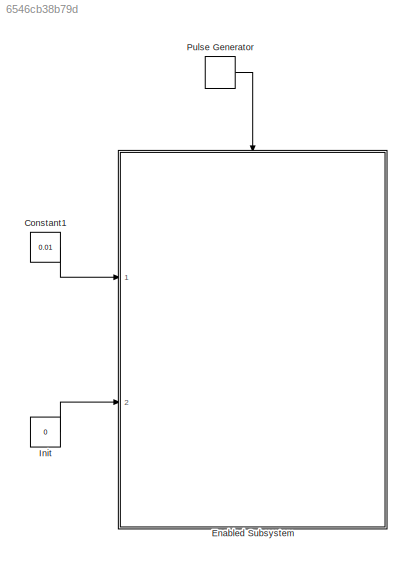
MODEL slx_6546cb38b79d
KIND model
CONFIG AbsTol = auto
CONFIG EnableMultiTasking = off
CONFIG FixedStep = auto
CONFIG InitFcn = cd '<path> v1.01.01_WindCrete'
CONFIG MaxStep = auto
CONFIG MinStep = auto
CONFIG RelTol = 1e-3
CONFIG SampleTimeConstraint = Unconstrained
CONFIG Solver = ode45
CONFIG SolverName = ode45
CONFIG StartFcn = loadlibrary('MoorDyn','MoorDyn')
CONFIG StartTime = 0.0
CONFIG StopFcn = calllib('MoorDyn','LinesClose'); % close MoorDyn \nunloadlibrary MoorDyn; % unload library (never forget to do this!)
CONFIG StopTime = 5400
BLOCK [Constant] Constant1
  Value = 0.01
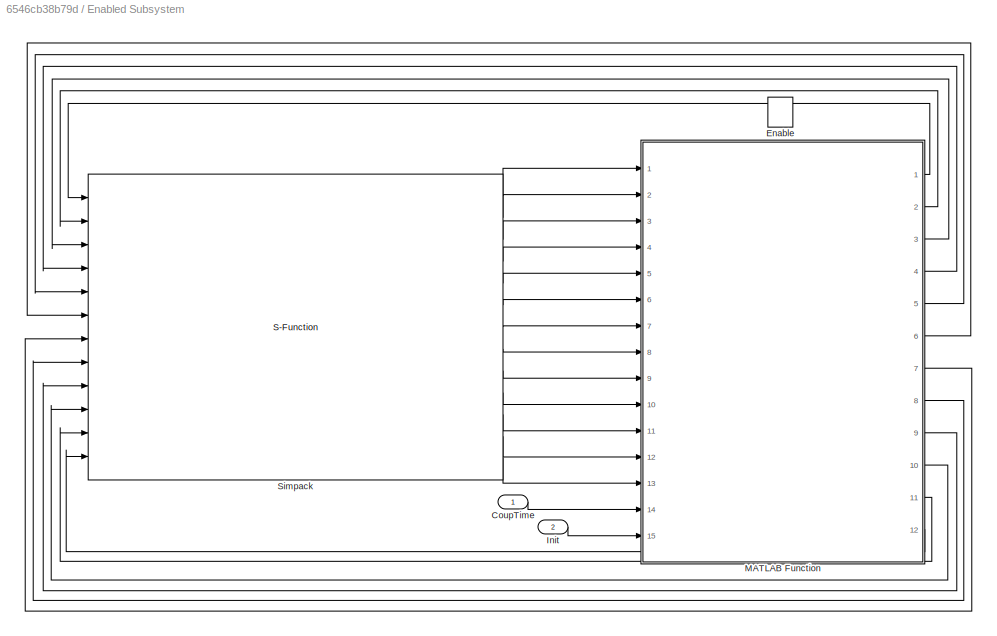
BLOCK [SubSystem] Enabled Subsystem
  Ports = [2, 0, 1]
  RequestExecContextInheritance = off
  TreatAsAtomicUnit = on
BLOCK [Inport] Enabled Subsystem/CoupTime
  IconDisplay = Port number
BLOCK [EnablePort] Enabled Subsystem/Enable
  Ports = []
BLOCK [Inport] Enabled Subsystem/Init 
  IconDisplay = Port number
  Port = 2
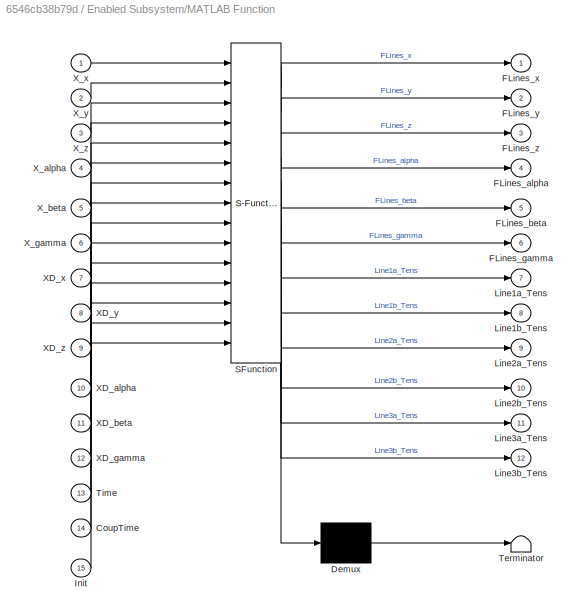
BLOCK [SubSystem] Enabled Subsystem/MATLAB Function
  ErrorFcn = Stateflow.Translate.translate
  PermitHierarchicalResolution = ExplicitOnly
  Ports = [15, 12]
  RequestExecContextInheritance = off
  SFBlockType = MATLAB Function
  TreatAsAtomicUnit = on
BLOCK [Demux] Enabled Subsystem/MATLAB Function/ Demux 
  Outputs = 1
  Ports = [1, 1]
BLOCK [S-Function] Enabled Subsystem/MATLAB Function/ SFunction 
  EnableBusSupport = on
  FunctionName = sf_sfun
  PortCounts = [15 13]
  Ports = [15, 13]
  SFcnIsStateOwnerBlock = off
  SFunctionDeploymentMode = off
  Tag = Stateflow S-Function MoordynSimulinkCoupling_WindCrete 1
BLOCK [Terminator] Enabled Subsystem/MATLAB Function/ Terminator 
BLOCK [Inport] Enabled Subsystem/MATLAB Function/CoupTime
  IconDisplay = Port number
  Port = 14
BLOCK [Outport] Enabled Subsystem/MATLAB Function/FLines_alpha
  IconDisplay = Port number
  Port = 4
BLOCK [Outport] Enabled Subsystem/MATLAB Function/FLines_beta
  IconDisplay = Port number
  Port = 5
BLOCK [Outport] Enabled Subsystem/MATLAB Function/FLines_gamma
  IconDisplay = Port number
  Port = 6
BLOCK [Outport] Enabled Subsystem/MATLAB Function/FLines_x
  IconDisplay = Port number
BLOCK [Outport] Enabled Subsystem/MATLAB Function/FLines_y
  IconDisplay = Port number
  Port = 2
BLOCK [Outport] Enabled Subsystem/MATLAB Function/FLines_z
  IconDisplay = Port number
  Port = 3
BLOCK [Inport] Enabled Subsystem/MATLAB Function/Init
  IconDisplay = Port number
  Port = 15
BLOCK [Outport] Enabled Subsystem/MATLAB Function/Line1a_Tens
  IconDisplay = Port number
  Port = 7
BLOCK [Outport] Enabled Subsystem/MATLAB Function/Line1b_Tens
  IconDisplay = Port number
  Port = 8
BLOCK [Outport] Enabled Subsystem/MATLAB Function/Line2a_Tens
  IconDisplay = Port number
  Port = 9
BLOCK [Outport] Enabled Subsystem/MATLAB Function/Line2b_Tens
  IconDisplay = Port number
  Port = 10
BLOCK [Outport] Enabled Subsystem/MATLAB Function/Line3a_Tens
  IconDisplay = Port number
  Port = 11
BLOCK [Outport] Enabled Subsystem/MATLAB Function/Line3b_Tens
  IconDisplay = Port number
  Port = 12
BLOCK [Inport] Enabled Subsystem/MATLAB Function/Time
  IconDisplay = Port number
  Port = 13
BLOCK [Inport] Enabled Subsystem/MATLAB Function/XD_alpha
  IconDisplay = Port number
  Port = 10
BLOCK [Inport] Enabled Subsystem/MATLAB Function/XD_beta
  IconDisplay = Port number
  Port = 11
BLOCK [Inport] Enabled Subsystem/MATLAB Function/XD_gamma
  IconDisplay = Port number
  Port = 12
BLOCK [Inport] Enabled Subsystem/MATLAB Function/XD_x
  IconDisplay = Port number
  Port = 7
BLOCK [Inport] Enabled Subsystem/MATLAB Function/XD_y
  IconDisplay = Port number
  Port = 8
BLOCK [Inport] Enabled Subsystem/MATLAB Function/XD_z
  IconDisplay = Port number
  Port = 9
BLOCK [Inport] Enabled Subsystem/MATLAB Function/X_alpha
  IconDisplay = Port number
  Port = 4
BLOCK [Inport] Enabled Subsystem/MATLAB Function/X_beta
  IconDisplay = Port number
  Port = 5
BLOCK [Inport] Enabled Subsystem/MATLAB Function/X_gamma
  IconDisplay = Port number
  Port = 6
BLOCK [Inport] Enabled Subsystem/MATLAB Function/X_x
  IconDisplay = Port number
BLOCK [Inport] Enabled Subsystem/MATLAB Function/X_y
  IconDisplay = Port number
  Port = 2
BLOCK [Inport] Enabled Subsystem/MATLAB Function/X_z
  IconDisplay = Port number
  Port = 3
BLOCK [S-Function] Enabled Subsystem/Simpack
  DestroyFcn = simat_callbacks('DestroyFcn');
  EnableBusSupport = off
  FunctionName = simat_2019_2
  OpenFcn = simat_callbacks('OpenFcn');
  Parameters = sample_time server_port server_address auto_start simpack_model initSimpackFirst executionType measType extrapolation_degree singleVectorIO writeSubvarFile writeMFile
  Ports = [12, 13]
  SFcnIsStateOwnerBlock = off
  SFunctionDeploymentMode = off
BLOCK [Constant] Init
  Value = 0
BLOCK [DiscretePulseGenerator] Pulse Generator
  Period = 0.01
  Ports = [0, 1]
  PulseType = Time based
  PulseWidth = 70
LINE Constant1:1 -> Enabled Subsystem:1
LINE Enabled Subsystem/CoupTime:1 -> Enabled Subsystem/MATLAB Function:14
LINE Enabled Subsystem/Init :1 -> Enabled Subsystem/MATLAB Function:15
LINE Enabled Subsystem/MATLAB Function:1 -> Enabled Subsystem/Simpack:1
LINE Enabled Subsystem/MATLAB Function:10 -> Enabled Subsystem/Simpack:10
LINE Enabled Subsystem/MATLAB Function:11 -> Enabled Subsystem/Simpack:11
LINE Enabled Subsystem/MATLAB Function:12 -> Enabled Subsystem/Simpack:12
LINE Enabled Subsystem/MATLAB Function:2 -> Enabled Subsystem/Simpack:2
LINE Enabled Subsystem/MATLAB Function:3 -> Enabled Subsystem/Simpack:3
LINE Enabled Subsystem/MATLAB Function:4 -> Enabled Subsystem/Simpack:4
LINE Enabled Subsystem/MATLAB Function:5 -> Enabled Subsystem/Simpack:5
LINE Enabled Subsystem/MATLAB Function:6 -> Enabled Subsystem/Simpack:6
LINE Enabled Subsystem/MATLAB Function:7 -> Enabled Subsystem/Simpack:7
LINE Enabled Subsystem/MATLAB Function:8 -> Enabled Subsystem/Simpack:8
LINE Enabled Subsystem/MATLAB Function:9 -> Enabled Subsystem/Simpack:9
LINE Enabled Subsystem/Simpack:1 -> Enabled Subsystem/MATLAB Function:1
LINE Enabled Subsystem/Simpack:10 -> Enabled Subsystem/MATLAB Function:10
LINE Enabled Subsystem/Simpack:11 -> Enabled Subsystem/MATLAB Function:11
LINE Enabled Subsystem/Simpack:12 -> Enabled Subsystem/MATLAB Function:12
LINE Enabled Subsystem/Simpack:13 -> Enabled Subsystem/MATLAB Function:13
LINE Enabled Subsystem/Simpack:2 -> Enabled Subsystem/MATLAB Function:2
LINE Enabled Subsystem/Simpack:3 -> Enabled Subsystem/MATLAB Function:3
LINE Enabled Subsystem/Simpack:4 -> Enabled Subsystem/MATLAB Function:4
LINE Enabled Subsystem/Simpack:5 -> Enabled Subsystem/MATLAB Function:5
LINE Enabled Subsystem/Simpack:6 -> Enabled Subsystem/MATLAB Function:6
LINE Enabled Subsystem/Simpack:7 -> Enabled Subsystem/MATLAB Function:7
LINE Enabled Subsystem/Simpack:8 -> Enabled Subsystem/MATLAB Function:8
LINE Enabled Subsystem/Simpack:9 -> Enabled Subsystem/MATLAB Function:9
LINE Init:1 -> Enabled Subsystem:2
LINE Pulse Generator:1 -> Enabled Subsystem:enable
CHART Enabled
Subsystem/MATLAB Function states=1 transitions=1
  STATE_LABEL 'eML_blk_kernel()'
  STATE_LABEL "SCRIPT:\nfunction [ FLines_x,FLines_y,FLines_z,FLines_alpha,FLines_beta,FLines_gamma,Line1a_Tens,Line1b_Tens,Line2a_Tens,Line2b_Tens,Line3a_Tens,Line3b_Tens ] = MoorDyn(X_x,X_y,X_z,X_alpha,X_beta,X_gamma,XD_x,XD_y,XD_z,XD_alpha,XD_beta,XD_gamma,Time,CoupTime,Init)\ncoder.extrinsic('MoorDyn_caller_WindCrete')\ncoder.extrinsic('loadlibrary')\ncoder.extrinsic('calllib')\ncoder.extrinsic('cd')\ncoder.extrin...<+872ch>"
note: 1 file-system path scrubbed to <path> (not preserved elsewhere — flat text is the only slx artifact)
